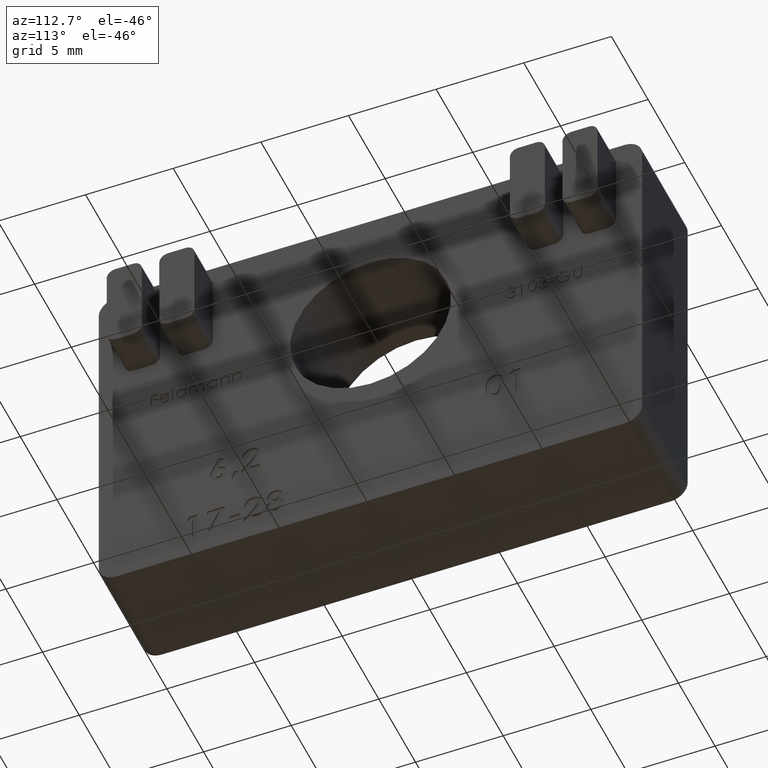
[diagram: clean part render]
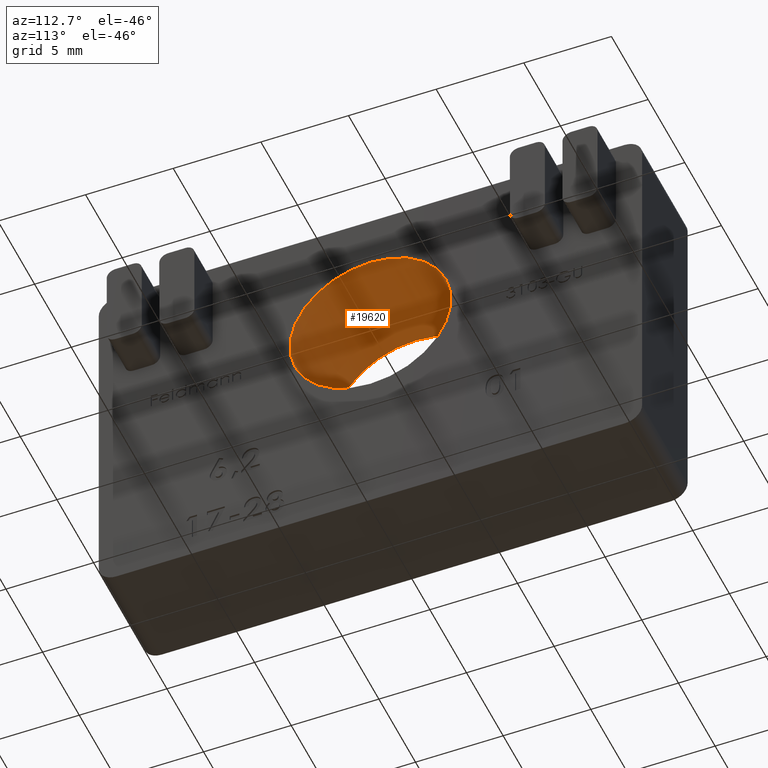
[diagram: same view with one face highlighted and labeled with its STEP entity id]
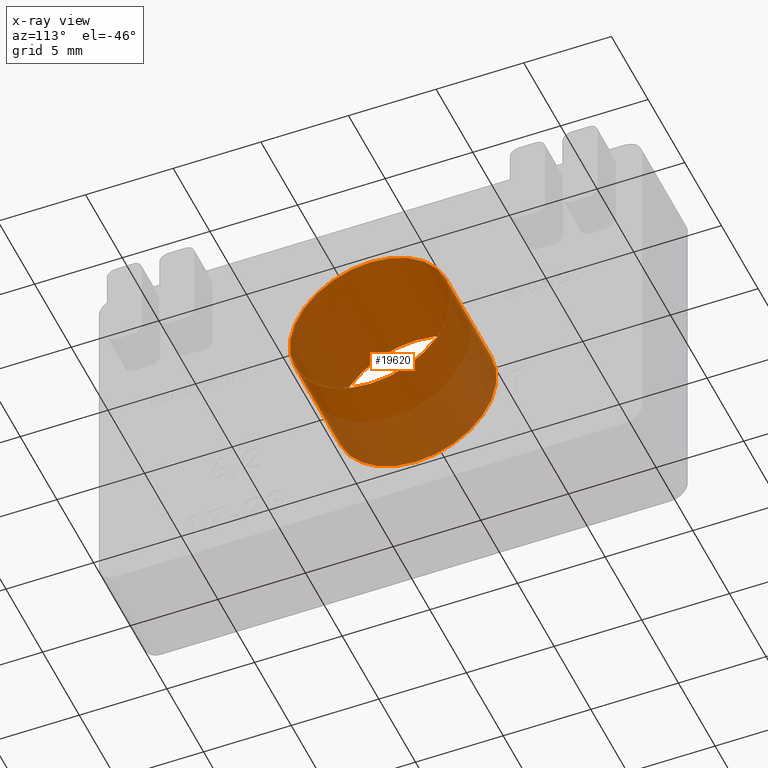
[diagram: x-ray of the same camera — body ghosted, the highlighted face saturated]
A machine part, auxiliary view. The second image highlights one B-rep face of the part: STEP entity #19620.
The next image is the same camera in x-ray: the body ghosted, the highlighted face saturated — about 30% of this face is hidden behind the body in this view.
In plain terms, the highlighted cylindrical surface (bore or boss wall) has radius 4.6 mm, axis along (-1, -0, -0).
Its self-contained STEP definition (entity closure, byte-faithful):
#2360 = FACE_OUTER_BOUND ( 'NONE', #4063, .T. ) ;
#3141 = DIRECTION ( 'NONE',  ( 1.000000000000000000, 0.000000000000000000, 0.000000000000000000 ) ) ;
#3508 = ORIENTED_EDGE ( 'NONE', *, *, #8861, .T. ) ;
#3952 = DIRECTION ( 'NONE',  ( -1.000000000000000000, -0.000000000000000000, -0.000000000000000000 ) ) ;
#4063 = EDGE_LOOP ( 'NONE', ( #15268 ) ) ;
#5277 = VERTEX_POINT ( 'NONE', #10988 ) ;
#5960 = CARTESIAN_POINT ( 'NONE',  ( -3.100000000000000089, 0.000000000000000000, -1.749999999999993783 ) ) ;
#7674 = DIRECTION ( 'NONE',  ( 1.000000000000000000, 0.000000000000000000, 0.000000000000000000 ) ) ;
#7984 = CIRCLE ( 'NONE', #13945, 4.599999999999999645 ) ;
#8861 = EDGE_CURVE ( 'NONE', #5277, #5277, #20641, .T. ) ;
#9531 = FACE_OUTER_BOUND ( 'NONE', #20900, .T. ) ;
#9723 = CARTESIAN_POINT ( 'NONE',  ( -3.100000000000000089, 0.000000000000000000, 2.850000000000006306 ) ) ;
#10673 = AXIS2_PLACEMENT_3D ( 'NONE', #20982, #3952, #17565 ) ;
#10988 = CARTESIAN_POINT ( 'NONE',  ( 3.100000000000000089, 0.000000000000000000, -1.749999999999993783 ) ) ;
#13945 = AXIS2_PLACEMENT_3D ( 'NONE', #9723, #3141, #19940 ) ;
#14034 = CYLINDRICAL_SURFACE ( 'NONE', #10673, 4.599999999999999645 ) ;
#14824 = VERTEX_POINT ( 'NONE', #5960 ) ;
#15268 = ORIENTED_EDGE ( 'NONE', *, *, #18325, .F. ) ;
#16575 = AXIS2_PLACEMENT_3D ( 'NONE', #21463, #7674, #19446 ) ;
#17565 = DIRECTION ( 'NONE',  ( 0.000000000000000000, 0.000000000000000000, 1.000000000000000000 ) ) ;
#18325 = EDGE_CURVE ( 'NONE', #14824, #14824, #7984, .T. ) ;
#19446 = DIRECTION ( 'NONE',  ( 0.000000000000000000, 0.000000000000000000, -1.000000000000000000 ) ) ;
#19620 = ADVANCED_FACE ( 'NONE', ( #9531, #2360 ), #14034, .F. ) ;
#19940 = DIRECTION ( 'NONE',  ( 0.000000000000000000, 0.000000000000000000, -1.000000000000000000 ) ) ;
#20641 = CIRCLE ( 'NONE', #16575, 4.599999999999999645 ) ;
#20900 = EDGE_LOOP ( 'NONE', ( #3508 ) ) ;
#20982 = CARTESIAN_POINT ( 'NONE',  ( 3.100000000000000089, 0.000000000000000000, 2.850000000000006306 ) ) ;
#21463 = CARTESIAN_POINT ( 'NONE',  ( 3.100000000000000089, 0.000000000000000000, 2.850000000000006306 ) ) ;